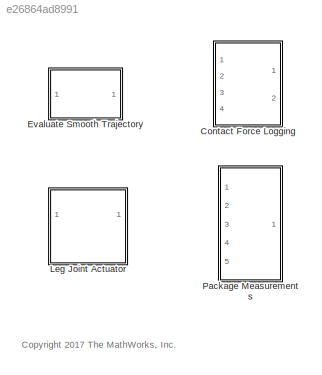
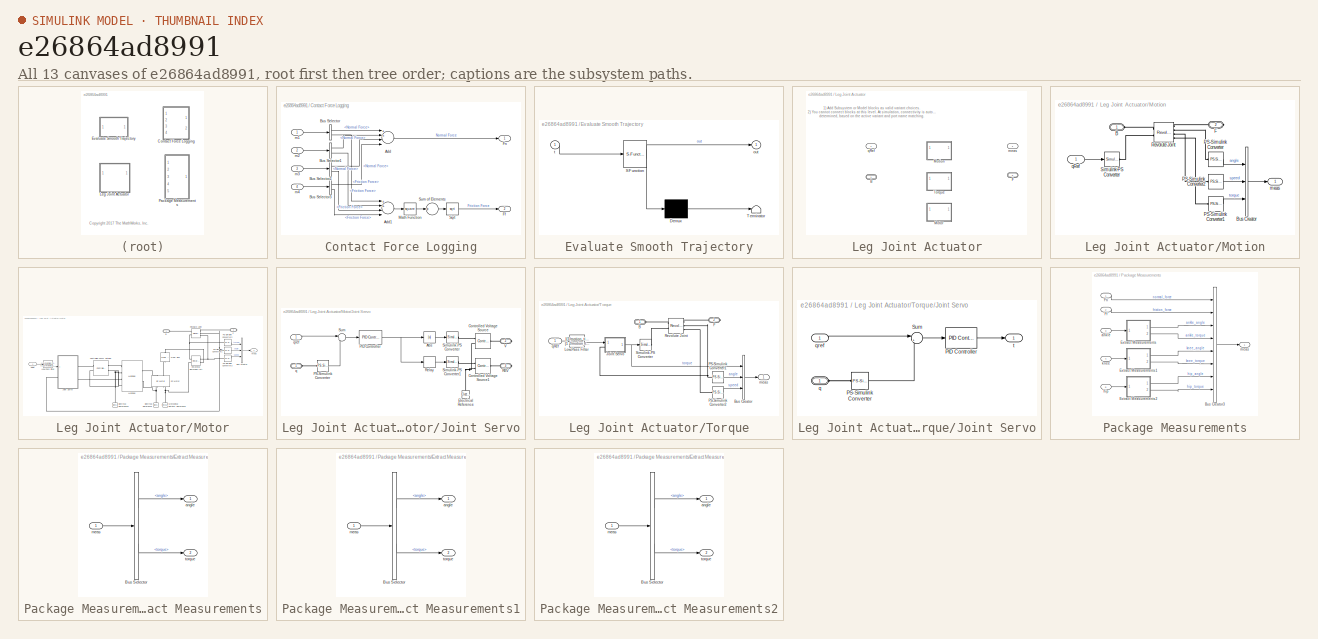
[diagram: thumbnail index - all 13 canvases of the model, root first then tree order]
MODEL slx_e26864ad8991
KIND library
CONFIG AbsTol = auto
CONFIG EnableMultiTasking = off
CONFIG FixedStep = auto
CONFIG MaxStep = auto
CONFIG MinStep = auto
CONFIG RelTol = 1e-3
CONFIG SampleTimeConstraint = Unconstrained
CONFIG Solver = VariableStepAuto
CONFIG SolverName = VariableStepAuto
CONFIG StartTime = 0.0
CONFIG StopTime = 10.0
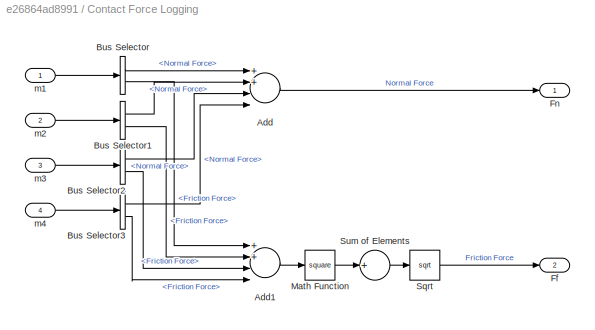
BLOCK [SubSystem] Contact Force Logging
  Ports = [4, 2]
  RequestExecContextInheritance = off
  Variant = off
BLOCK [Sum] Contact Force Logging/Add
  InputSameDT = off
  Inputs = 4
  OutDataTypeStr = Inherit: Inherit via internal rule
  Ports = [4, 1]
  SaturateOnIntegerOverflow = off
BLOCK [Sum] Contact Force Logging/Add1
  InputSameDT = off
  Inputs = 4
  OutDataTypeStr = Inherit: Inherit via internal rule
  Ports = [4, 1]
  SaturateOnIntegerOverflow = off
BLOCK [BusSelector] Contact Force Logging/Bus Selector
  OutputAsBus = off
  OutputSignals = Normal Force,Friction Force
  Ports = [1, 2]
BLOCK [BusSelector] Contact Force Logging/Bus Selector1
  OutputAsBus = off
  OutputSignals = Normal Force,Friction Force
  Ports = [1, 2]
BLOCK [BusSelector] Contact Force Logging/Bus Selector2
  OutputAsBus = off
  OutputSignals = Normal Force,Friction Force
  Ports = [1, 2]
BLOCK [BusSelector] Contact Force Logging/Bus Selector3
  OutputAsBus = off
  OutputSignals = Normal Force,Friction Force
  Ports = [1, 2]
BLOCK [Outport] Contact Force Logging/Ff
  IconDisplay = Port number
  Port = 2
BLOCK [Outport] Contact Force Logging/Fn
  IconDisplay = Port number
BLOCK [Math] Contact Force Logging/Math Function
  Operator = square
  Ports = [1, 1]
BLOCK [Sqrt] Contact Force Logging/Sqrt
BLOCK [Sum] Contact Force Logging/Sum of Elements
  InputSameDT = off
  Inputs = +
  OutDataTypeStr = Inherit: Inherit via internal rule
  Ports = [1, 1]
  SaturateOnIntegerOverflow = off
BLOCK [Inport] Contact Force Logging/m1
  IconDisplay = Port number
BLOCK [Inport] Contact Force Logging/m2
  IconDisplay = Port number
  Port = 2
BLOCK [Inport] Contact Force Logging/m3
  IconDisplay = Port number
  Port = 3
BLOCK [Inport] Contact Force Logging/m4
  IconDisplay = Port number
  Port = 4
BLOCK [SubSystem] Evaluate Smooth Trajectory
  ErrorFcn = Stateflow.Translate.translate
  PermitHierarchicalResolution = ExplicitOnly
  Ports = [1, 1]
  RequestExecContextInheritance = off
  SFBlockType = MATLAB Function
  TreatAsAtomicUnit = on
  Variant = off
BLOCK [Demux] Evaluate Smooth Trajectory/ Demux 
  Outputs = 1
  Ports = [1, 1]
BLOCK [S-Function] Evaluate Smooth Trajectory/ SFunction 
  EnableBusSupport = on
  FunctionName = sf_sfun
  Parameters = curveData
  PortCounts = [1 2]
  Ports = [1, 2]
  SFcnIsStateOwnerBlock = off
  SFunctionDeploymentMode = off
  Tag = Stateflow S-Function walkingRobotUtils 4
BLOCK [Terminator] Evaluate Smooth Trajectory/ Terminator 
BLOCK [Outport] Evaluate Smooth Trajectory/out
  IconDisplay = Port number
BLOCK [Inport] Evaluate Smooth Trajectory/t
  IconDisplay = Port number
BLOCK [SubSystem] Leg Joint Actuator
  Ports = [1, 1, 0, 0, 0, 1, 1]
  RequestExecContextInheritance = off
  Variant = on
BLOCK [PMIOPort] Leg Joint Actuator/B
  Port = 1
  Side = Left
BLOCK [PMIOPort] Leg Joint Actuator/F
  Port = 2
  Side = Right
BLOCK [SubSystem] Leg Joint Actuator/Motion
  Ports = [1, 1, 0, 0, 0, 1, 1]
  RequestExecContextInheritance = off
  Variant = off
  VariantControl = actuatorType == 1
BLOCK [PMIOPort] Leg Joint Actuator/Motion/B
  Port = 1
  Side = Left
BLOCK [BusCreator] Leg Joint Actuator/Motion/Bus Creator
  DisplayOption = bar
  InheritFromInputs = on
  Inputs = 3
  Ports = [3, 1]
BLOCK [PMIOPort] Leg Joint Actuator/Motion/F
  Port = 2
  Side = Right
BLOCK [Reference] Leg Joint Actuator/Motion/PS-Simulink Converter  REF=nesl_utility/PS-Simulink
Converter
  Ports = [0, 1, 0, 0, 0, 1]
  SourceBlock = nesl_utility/PS-Simulink\nConverter
  SourceProductBaseCode = SS
  SourceProductName = Simscape
  SourceType = PS-Simulink\nConverter
BLOCK [Reference] Leg Joint Actuator/Motion/PS-Simulink Converter1  REF=nesl_utility/PS-Simulink
Converter
  Ports = [0, 1, 0, 0, 0, 1]
  SourceBlock = nesl_utility/PS-Simulink\nConverter
  SourceProductBaseCode = SS
  SourceProductName = Simscape
  SourceType = PS-Simulink\nConverter
BLOCK [Reference] Leg Joint Actuator/Motion/PS-Simulink Converter2  REF=nesl_utility/PS-Simulink
Converter
  Ports = [0, 1, 0, 0, 0, 1]
  SourceBlock = nesl_utility/PS-Simulink\nConverter
  SourceProductBaseCode = SS
  SourceProductName = Simscape
  SourceType = PS-Simulink\nConverter
BLOCK [Reference] Leg Joint Actuator/Motion/Revolute Joint  REF=sm_lib/Joints/Revolute Joint
  Ports = [0, 0, 0, 0, 0, 2, 4]
  SourceBlock = sm_lib/Joints/Revolute Joint
  SourceProductBaseCode = MS
  SourceProductName = Simscape Multibody
  SourceType = Revolute Joint
BLOCK [Reference] Leg Joint Actuator/Motion/Simulink-PS Converter  REF=nesl_utility/Simulink-PS
Converter
  Ports = [1, 0, 0, 0, 0, 0, 1]
  SourceBlock = nesl_utility/Simulink-PS\nConverter
  SourceProductBaseCode = SS
  SourceProductName = Simscape
  SourceType = Simulink-PS\nConverter
BLOCK [Outport] Leg Joint Actuator/Motion/meas
  IconDisplay = Port number
BLOCK [Inport] Leg Joint Actuator/Motion/qRef
  IconDisplay = Port number
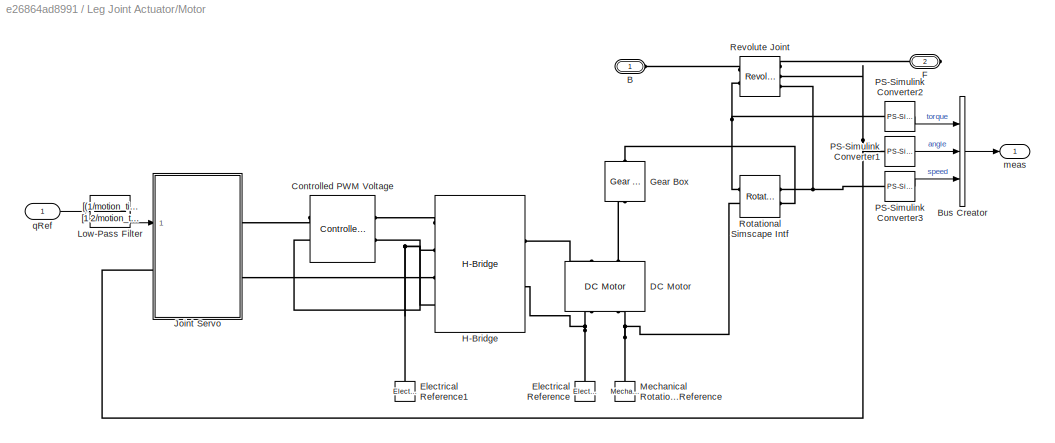
BLOCK [SubSystem] Leg Joint Actuator/Motor
  Ports = [1, 1, 0, 0, 0, 1, 1]
  RequestExecContextInheritance = off
  Variant = off
  VariantControl = actuatorType == 3
BLOCK [PMIOPort] Leg Joint Actuator/Motor/B
  Port = 1
  Side = Left
BLOCK [BusCreator] Leg Joint Actuator/Motor/Bus Creator
  DisplayOption = bar
  InheritFromInputs = on
  Inputs = 3
  Ports = [3, 1]
BLOCK [Reference] Leg Joint Actuator/Motor/Controlled PWM Voltage  REF=elec_lib/Actuators & Drivers/Drivers/Controlled PWM
Voltage
  Ports = [0, 0, 0, 0, 0, 2, 2]
  SourceBlock = elec_lib/Actuators & Drivers/Drivers/Controlled PWM\nVoltage
  SourceProductBaseCode = SN
  SourceProductName = Simscape Electronics
  SourceType = Controlled PWM\nVoltage
BLOCK [Reference] Leg Joint Actuator/Motor/DC Motor  REF=elec_lib/Actuators & Drivers/Rotational Actuators/DC Motor
  Ports = [0, 0, 0, 0, 0, 2, 2]
  SourceBlock = elec_lib/Actuators & Drivers/Rotational Actuators/DC Motor
  SourceProductBaseCode = SN
  SourceProductName = Simscape Electronics
  SourceType = DC Motor
BLOCK [Reference] Leg Joint Actuator/Motor/Electrical Reference  REF=fl_lib/Electrical/Electrical Elements/Electrical Reference
  Ports = [0, 0, 0, 0, 0, 1]
  SourceBlock = fl_lib/Electrical/Electrical Elements/Electrical Reference
  SourceProductBaseCode = SS
  SourceProductName = Simscape
  SourceType = Electrical Reference
BLOCK [Reference] Leg Joint Actuator/Motor/Electrical Reference1  REF=fl_lib/Electrical/Electrical Elements/Electrical Reference
  Ports = [0, 0, 0, 0, 0, 1]
  SourceBlock = fl_lib/Electrical/Electrical Elements/Electrical Reference
  SourceProductBaseCode = SS
  SourceProductName = Simscape
  SourceType = Electrical Reference
BLOCK [PMIOPort] Leg Joint Actuator/Motor/F
  Port = 2
  Side = Right
BLOCK [Reference] Leg Joint Actuator/Motor/Gear Box  REF=fl_lib/Mechanical/Mechanisms/Gear Box
  Ports = [0, 0, 0, 0, 0, 1, 1]
  SourceBlock = fl_lib/Mechanical/Mechanisms/Gear Box
  SourceProductBaseCode = SS
  SourceProductName = Simscape
  SourceType = Gear Box
BLOCK [Reference] Leg Joint Actuator/Motor/H-Bridge  REF=elec_lib/Actuators & Drivers/Drivers/H-Bridge
  Ports = [0, 0, 0, 0, 0, 4, 2]
  SourceBlock = elec_lib/Actuators & Drivers/Drivers/H-Bridge
  SourceProductBaseCode = SN
  SourceProductName = Simscape Electronics
  SourceType = H-Bridge
BLOCK [SubSystem] Leg Joint Actuator/Motor/Joint Servo
  Ports = [1, 0, 0, 0, 0, 1, 2]
  RequestExecContextInheritance = off
  Variant = off
BLOCK [Abs] Leg Joint Actuator/Motor/Joint Servo/Abs
  SaturateOnIntegerOverflow = off
BLOCK [Reference] Leg Joint Actuator/Motor/Joint Servo/Controlled Voltage Source  REF=fl_lib/Electrical/Electrical Sources/Controlled Voltage
Source
  Ports = [0, 0, 0, 0, 0, 1, 2]
  SourceBlock = fl_lib/Electrical/Electrical Sources/Controlled Voltage\nSource
  SourceProductBaseCode = SS
  SourceProductName = Simscape
  SourceType = Controlled Voltage\nSource
BLOCK [Reference] Leg Joint Actuator/Motor/Joint Servo/Controlled Voltage Source1  REF=fl_lib/Electrical/Electrical Sources/Controlled Voltage
Source
  Ports = [0, 0, 0, 0, 0, 1, 2]
  SourceBlock = fl_lib/Electrical/Electrical Sources/Controlled Voltage\nSource
  SourceProductBaseCode = SS
  SourceProductName = Simscape
  SourceType = Controlled Voltage\nSource
BLOCK [Reference] Leg Joint Actuator/Motor/Joint Servo/Electrical Reference  REF=fl_lib/Electrical/Electrical Elements/Electrical Reference
  Ports = [0, 0, 0, 0, 0, 1]
  SourceBlock = fl_lib/Electrical/Electrical Elements/Electrical Reference
  SourceProductBaseCode = SS
  SourceProductName = Simscape
  SourceType = Electrical Reference
BLOCK [Reference] Leg Joint Actuator/Motor/Joint Servo/PID Controller  REF=simulink/Continuous/PID Controller
  Ports = [1, 1]
  SourceBlock = simulink/Continuous/PID Controller
  SourceProductBaseCode = SL
  SourceProductName = Simulink
  SourceType = PID 1dof
BLOCK [Reference] Leg Joint Actuator/Motor/Joint Servo/PS-Simulink Converter  REF=nesl_utility/PS-Simulink
Converter
  Ports = [0, 1, 0, 0, 0, 1]
  SourceBlock = nesl_utility/PS-Simulink\nConverter
  SourceProductBaseCode = SS
  SourceProductName = Simscape
  SourceType = PS-Simulink\nConverter
BLOCK [PMIOPort] Leg Joint Actuator/Motor/Joint Servo/REV
  Port = 3
  Side = Right
BLOCK [Relay] Leg Joint Actuator/Motor/Joint Servo/Relay
  InputProcessing = Elements as channels (sample based)
  OffOutputValue = 5
  OffSwitchValue = -1e-3
  OnOutputValue = 0
  OnSwitchValue = 1e-3
BLOCK [Reference] Leg Joint Actuator/Motor/Joint Servo/Simulink-PS Converter  REF=nesl_utility/Simulink-PS
Converter
  Ports = [1, 0, 0, 0, 0, 0, 1]
  SourceBlock = nesl_utility/Simulink-PS\nConverter
  SourceProductBaseCode = SS
  SourceProductName = Simscape
  SourceType = Simulink-PS\nConverter
BLOCK [Reference] Leg Joint Actuator/Motor/Joint Servo/Simulink-PS Converter1  REF=nesl_utility/Simulink-PS
Converter
  Ports = [1, 0, 0, 0, 0, 0, 1]
  SourceBlock = nesl_utility/Simulink-PS\nConverter
  SourceProductBaseCode = SS
  SourceProductName = Simscape
  SourceType = Simulink-PS\nConverter
BLOCK [Sum] Leg Joint Actuator/Motor/Joint Servo/Sum
  IconShape = round
  InputSameDT = off
  Inputs = |+-
  OutDataTypeStr = Inherit: Inherit via internal rule
  Ports = [2, 1]
  SaturateOnIntegerOverflow = off
BLOCK [PMIOPort] Leg Joint Actuator/Motor/Joint Servo/V
  Port = 2
  Side = Right
BLOCK [PMIOPort] Leg Joint Actuator/Motor/Joint Servo/q
  Port = 1
  Side = Left
BLOCK [Inport] Leg Joint Actuator/Motor/Joint Servo/qref
  IconDisplay = Port number
BLOCK [TransferFcn] Leg Joint Actuator/Motor/Low-Pass Filter
  Denominator = [1 2/motion_time_constant (1/motion_time_constant)^2]
  Numerator = [(1/motion_time_constant)^2]
BLOCK [Reference] Leg Joint Actuator/Motor/Mechanical Rotational Reference  REF=fl_lib/Mechanical/Rotational Elements/Mechanical
Rotational Reference
  Ports = [0, 0, 0, 0, 0, 1]
  SourceBlock = fl_lib/Mechanical/Rotational Elements/Mechanical\nRotational Reference
  SourceProductBaseCode = SS
  SourceProductName = Simscape
  SourceType = Mechanical\nRotational Reference
BLOCK [Reference] Leg Joint Actuator/Motor/PS-Simulink Converter1  REF=nesl_utility/PS-Simulink
Converter
  Ports = [0, 1, 0, 0, 0, 1]
  SourceBlock = nesl_utility/PS-Simulink\nConverter
  SourceProductBaseCode = SS
  SourceProductName = Simscape
  SourceType = PS-Simulink\nConverter
BLOCK [Reference] Leg Joint Actuator/Motor/PS-Simulink Converter2  REF=nesl_utility/PS-Simulink
Converter
  Ports = [0, 1, 0, 0, 0, 1]
  SourceBlock = nesl_utility/PS-Simulink\nConverter
  SourceProductBaseCode = SS
  SourceProductName = Simscape
  SourceType = PS-Simulink\nConverter
BLOCK [Reference] Leg Joint Actuator/Motor/PS-Simulink Converter3  REF=nesl_utility/PS-Simulink
Converter
  Ports = [0, 1, 0, 0, 0, 1]
  SourceBlock = nesl_utility/PS-Simulink\nConverter
  SourceProductBaseCode = SS
  SourceProductName = Simscape
  SourceType = PS-Simulink\nConverter
BLOCK [Reference] Leg Joint Actuator/Motor/Revolute Joint  REF=sm_lib/Joints/Revolute Joint
  Ports = [0, 0, 0, 0, 0, 2, 3]
  SourceBlock = sm_lib/Joints/Revolute Joint
  SourceProductBaseCode = MS
  SourceProductName = Simscape Multibody
  SourceType = Revolute Joint
BLOCK [Reference] Leg Joint Actuator/Motor/Rotational Simscape Intf  REF=Multibody_Multiphysics_Lib/Interfaces/Rotational
Simscape Intf
  Ports = [0, 0, 0, 0, 0, 2, 2]
  SourceBlock = Multibody_Multiphysics_Lib/Interfaces/Rotational\nSimscape Intf
  SourceProductName = Simscape Multibody Multiphysics Library
  SourceType = SubSystem
BLOCK [Outport] Leg Joint Actuator/Motor/meas
  IconDisplay = Port number
BLOCK [Inport] Leg Joint Actuator/Motor/qRef
  IconDisplay = Port number
BLOCK [SubSystem] Leg Joint Actuator/Torque
  Ports = [1, 1, 0, 0, 0, 1, 1]
  RequestExecContextInheritance = off
  Variant = off
  VariantControl = actuatorType == 2
BLOCK [PMIOPort] Leg Joint Actuator/Torque/B
  Port = 1
  Side = Left
BLOCK [BusCreator] Leg Joint Actuator/Torque/Bus Creator
  DisplayOption = bar
  InheritFromInputs = on
  Inputs = 3
  Ports = [3, 1]
BLOCK [PMIOPort] Leg Joint Actuator/Torque/F
  Port = 2
  Side = Right
BLOCK [SubSystem] Leg Joint Actuator/Torque/Joint Servo
  Ports = [1, 1, 0, 0, 0, 1]
  RequestExecContextInheritance = off
  Variant = off
BLOCK [Reference] Leg Joint Actuator/Torque/Joint Servo/PID Controller  REF=simulink/Continuous/PID Controller
  Ports = [1, 1]
  SourceBlock = simulink/Continuous/PID Controller
  SourceProductBaseCode = SL
  SourceProductName = Simulink
  SourceType = PID 1dof
BLOCK [Reference] Leg Joint Actuator/Torque/Joint Servo/PS-Simulink Converter  REF=nesl_utility/PS-Simulink
Converter
  Ports = [0, 1, 0, 0, 0, 1]
  SourceBlock = nesl_utility/PS-Simulink\nConverter
  SourceProductBaseCode = SS
  SourceProductName = Simscape
  SourceType = PS-Simulink\nConverter
BLOCK [Sum] Leg Joint Actuator/Torque/Joint Servo/Sum
  IconShape = round
  InputSameDT = off
  Inputs = |+-
  OutDataTypeStr = Inherit: Inherit via internal rule
  Ports = [2, 1]
  SaturateOnIntegerOverflow = off
BLOCK [PMIOPort] Leg Joint Actuator/Torque/Joint Servo/q
  Port = 1
  Side = Left
BLOCK [Inport] Leg Joint Actuator/Torque/Joint Servo/qref
  IconDisplay = Port number
BLOCK [Outport] Leg Joint Actuator/Torque/Joint Servo/t
  IconDisplay = Port number
BLOCK [TransferFcn] Leg Joint Actuator/Torque/Low-Pass Filter
  Denominator = [1 2/motion_time_constant (1/motion_time_constant)^2]
  Numerator = [(1/motion_time_constant)^2]
BLOCK [Reference] Leg Joint Actuator/Torque/PS-Simulink Converter1  REF=nesl_utility/PS-Simulink
Converter
  Ports = [0, 1, 0, 0, 0, 1]
  SourceBlock = nesl_utility/PS-Simulink\nConverter
  SourceProductBaseCode = SS
  SourceProductName = Simscape
  SourceType = PS-Simulink\nConverter
BLOCK [Reference] Leg Joint Actuator/Torque/PS-Simulink Converter2  REF=nesl_utility/PS-Simulink
Converter
  Ports = [0, 1, 0, 0, 0, 1]
  SourceBlock = nesl_utility/PS-Simulink\nConverter
  SourceProductBaseCode = SS
  SourceProductName = Simscape
  SourceType = PS-Simulink\nConverter
BLOCK [Reference] Leg Joint Actuator/Torque/Revolute Joint  REF=sm_lib/Joints/Revolute Joint
  Ports = [0, 0, 0, 0, 0, 2, 3]
  SourceBlock = sm_lib/Joints/Revolute Joint
  SourceProductBaseCode = MS
  SourceProductName = Simscape Multibody
  SourceType = Revolute Joint
BLOCK [Reference] Leg Joint Actuator/Torque/Simulink-PS Converter  REF=nesl_utility/Simulink-PS
Converter
  Ports = [1, 0, 0, 0, 0, 0, 1]
  SourceBlock = nesl_utility/Simulink-PS\nConverter
  SourceProductBaseCode = SS
  SourceProductName = Simscape
  SourceType = Simulink-PS\nConverter
BLOCK [Outport] Leg Joint Actuator/Torque/meas
  IconDisplay = Port number
BLOCK [Inport] Leg Joint Actuator/Torque/qRef
  IconDisplay = Port number
BLOCK [Outport] Leg Joint Actuator/meas
  IconDisplay = Port number
BLOCK [Inport] Leg Joint Actuator/qRef
  IconDisplay = Port number
BLOCK [SubSystem] Package Measurements
  Ports = [5, 1]
  RequestExecContextInheritance = off
  Variant = off
BLOCK [BusCreator] Package Measurements/Bus Creator3
  DisplayOption = bar
  InheritFromInputs = on
  Inputs = 8
  Ports = [8, 1]
BLOCK [SubSystem] Package Measurements/Extract Measurements
  Ports = [1, 2]
  RequestExecContextInheritance = off
  Variant = off
BLOCK [BusSelector] Package Measurements/Extract Measurements/Bus Selector
  OutputAsBus = off
  OutputSignals = angle,torque
  Ports = [1, 2]
BLOCK [Outport] Package Measurements/Extract Measurements/angle
  IconDisplay = Port number
BLOCK [Inport] Package Measurements/Extract Measurements/meas
  IconDisplay = Port number
BLOCK [Outport] Package Measurements/Extract Measurements/torque
  IconDisplay = Port number
  Port = 2
BLOCK [SubSystem] Package Measurements/Extract Measurements1
  Ports = [1, 2]
  RequestExecContextInheritance = off
  Variant = off
BLOCK [BusSelector] Package Measurements/Extract Measurements1/Bus Selector
  OutputAsBus = off
  OutputSignals = angle,torque
  Ports = [1, 2]
BLOCK [Outport] Package Measurements/Extract Measurements1/angle
  IconDisplay = Port number
BLOCK [Inport] Package Measurements/Extract Measurements1/meas
  IconDisplay = Port number
BLOCK [Outport] Package Measurements/Extract Measurements1/torque
  IconDisplay = Port number
  Port = 2
BLOCK [SubSystem] Package Measurements/Extract Measurements2
  Ports = [1, 2]
  RequestExecContextInheritance = off
  Variant = off
BLOCK [BusSelector] Package Measurements/Extract Measurements2/Bus Selector
  OutputAsBus = off
  OutputSignals = angle,torque
  Ports = [1, 2]
BLOCK [Outport] Package Measurements/Extract Measurements2/angle
  IconDisplay = Port number
BLOCK [Inport] Package Measurements/Extract Measurements2/meas
  IconDisplay = Port number
BLOCK [Outport] Package Measurements/Extract Measurements2/torque
  IconDisplay = Port number
  Port = 2
BLOCK [Inport] Package Measurements/Ff
  IconDisplay = Port number
  Port = 2
BLOCK [Inport] Package Measurements/Fn
  IconDisplay = Port number
BLOCK [Inport] Package Measurements/ankle
  IconDisplay = Port number
  Port = 3
BLOCK [Inport] Package Measurements/hip
  IconDisplay = Port number
  Port = 5
BLOCK [Inport] Package Measurements/knee
  IconDisplay = Port number
  Port = 4
BLOCK [Outport] Package Measurements/meas
  IconDisplay = Port number
ANNOTATION (root): <copyright redacted>
ANNOTATION Leg Joint Actuator: 1) Add Subsystem or Model blocks as valid variant choices. 2) You cannot connect blocks at this level. At simulation, connectivity is automatically determined, based on the active variant and port name matching.
LINE Contact Force Logging/Add1:1 -> Contact Force Logging/Math Function:1
LINE Contact Force Logging/Add:1 -> Contact Force Logging/Fn:1
LINE Contact Force Logging/Bus Selector1:1 -> Contact Force Logging/Add:2
LINE Contact Force Logging/Bus Selector1:2 -> Contact Force Logging/Add1:2
LINE Contact Force Logging/Bus Selector2:1 -> Contact Force Logging/Add:3
LINE Contact Force Logging/Bus Selector2:2 -> Contact Force Logging/Add1:3
LINE Contact Force Logging/Bus Selector3:1 -> Contact Force Logging/Add:4
LINE Contact Force Logging/Bus Selector3:2 -> Contact Force Logging/Add1:4
LINE Contact Force Logging/Bus Selector:1 -> Contact Force Logging/Add:1
LINE Contact Force Logging/Bus Selector:2 -> Contact Force Logging/Add1:1
LINE Contact Force Logging/Math Function:1 -> Contact Force Logging/Sum of Elements:1
LINE Contact Force Logging/Sqrt:1 -> Contact Force Logging/Ff:1
LINE Contact Force Logging/Sum of Elements:1 -> Contact Force Logging/Sqrt:1
LINE Contact Force Logging/m1:1 -> Contact Force Logging/Bus Selector:1
LINE Contact Force Logging/m2:1 -> Contact Force Logging/Bus Selector1:1
LINE Contact Force Logging/m3:1 -> Contact Force Logging/Bus Selector2:1
LINE Contact Force Logging/m4:1 -> Contact Force Logging/Bus Selector3:1
LINE Leg Joint Actuator/Motion/Bus Creator:1 -> Leg Joint Actuator/Motion/meas:1
LINE Leg Joint Actuator/Motion/PS-Simulink Converter1:1 -> Leg Joint Actuator/Motion/Bus Creator:3
LINE Leg Joint Actuator/Motion/PS-Simulink Converter2:1 -> Leg Joint Actuator/Motion/Bus Creator:2
LINE Leg Joint Actuator/Motion/PS-Simulink Converter:1 -> Leg Joint Actuator/Motion/Bus Creator:1
LINE Leg Joint Actuator/Motion/qRef:1 -> Leg Joint Actuator/Motion/Simulink-PS Converter:1
LINE Leg Joint Actuator/Motor/Bus Creator:1 -> Leg Joint Actuator/Motor/meas:1
LINE Leg Joint Actuator/Motor/Joint Servo/Abs:1 -> Leg Joint Actuator/Motor/Joint Servo/Simulink-PS Converter:1
NET Leg Joint Actuator/Motor/Joint Servo/PID Controller:1 -> Leg Joint Actuator/Motor/Joint Servo/Abs:1, Leg Joint Actuator/Motor/Joint Servo/Relay:1
LINE Leg Joint Actuator/Motor/Joint Servo/PS-Simulink Converter:1 -> Leg Joint Actuator/Motor/Joint Servo/Sum:2
LINE Leg Joint Actuator/Motor/Joint Servo/Relay:1 -> Leg Joint Actuator/Motor/Joint Servo/Simulink-PS Converter1:1
LINE Leg Joint Actuator/Motor/Joint Servo/Sum:1 -> Leg Joint Actuator/Motor/Joint Servo/PID Controller:1
LINE Leg Joint Actuator/Motor/Joint Servo/qref:1 -> Leg Joint Actuator/Motor/Joint Servo/Sum:1
LINE Leg Joint Actuator/Motor/Low-Pass Filter:1 -> Leg Joint Actuator/Motor/Joint Servo:1
LINE Leg Joint Actuator/Motor/PS-Simulink Converter1:1 -> Leg Joint Actuator/Motor/Bus Creator:2
LINE Leg Joint Actuator/Motor/PS-Simulink Converter2:1 -> Leg Joint Actuator/Motor/Bus Creator:1
LINE Leg Joint Actuator/Motor/PS-Simulink Converter3:1 -> Leg Joint Actuator/Motor/Bus Creator:3
LINE Leg Joint Actuator/Motor/qRef:1 -> Leg Joint Actuator/Motor/Low-Pass Filter:1
LINE Leg Joint Actuator/Torque/Bus Creator:1 -> Leg Joint Actuator/Torque/meas:1
LINE Leg Joint Actuator/Torque/Joint Servo/PID Controller:1 -> Leg Joint Actuator/Torque/Joint Servo/t:1
LINE Leg Joint Actuator/Torque/Joint Servo/PS-Simulink Converter:1 -> Leg Joint Actuator/Torque/Joint Servo/Sum:2
LINE Leg Joint Actuator/Torque/Joint Servo/Sum:1 -> Leg Joint Actuator/Torque/Joint Servo/PID Controller:1
LINE Leg Joint Actuator/Torque/Joint Servo/qref:1 -> Leg Joint Actuator/Torque/Joint Servo/Sum:1
NET Leg Joint Actuator/Torque/Joint Servo:1 -> Leg Joint Actuator/Torque/Bus Creator:1, Leg Joint Actuator/Torque/Simulink-PS Converter:1
LINE Leg Joint Actuator/Torque/Low-Pass Filter:1 -> Leg Joint Actuator/Torque/Joint Servo:1
LINE Leg Joint Actuator/Torque/PS-Simulink Converter1:1 -> Leg Joint Actuator/Torque/Bus Creator:2
LINE Leg Joint Actuator/Torque/PS-Simulink Converter2:1 -> Leg Joint Actuator/Torque/Bus Creator:3
LINE Leg Joint Actuator/Torque/qRef:1 -> Leg Joint Actuator/Torque/Low-Pass Filter:1
LINE Package Measurements/Bus Creator3:1 -> Package Measurements/meas:1
LINE Package Measurements/Extract Measurements/Bus Selector:1 -> Package Measurements/Extract Measurements/angle:1
LINE Package Measurements/Extract Measurements/Bus Selector:2 -> Package Measurements/Extract Measurements/torque:1
LINE Package Measurements/Extract Measurements/meas:1 -> Package Measurements/Extract Measurements/Bus Selector:1
LINE Package Measurements/Extract Measurements1/Bus Selector:1 -> Package Measurements/Extract Measurements1/angle:1
LINE Package Measurements/Extract Measurements1/Bus Selector:2 -> Package Measurements/Extract Measurements1/torque:1
LINE Package Measurements/Extract Measurements1/meas:1 -> Package Measurements/Extract Measurements1/Bus Selector:1
LINE Package Measurements/Extract Measurements1:1 -> Package Measurements/Bus Creator3:5
LINE Package Measurements/Extract Measurements1:2 -> Package Measurements/Bus Creator3:6
LINE Package Measurements/Extract Measurements2/Bus Selector:1 -> Package Measurements/Extract Measurements2/angle:1
LINE Package Measurements/Extract Measurements2/Bus Selector:2 -> Package Measurements/Extract Measurements2/torque:1
LINE Package Measurements/Extract Measurements2/meas:1 -> Package Measurements/Extract Measurements2/Bus Selector:1
LINE Package Measurements/Extract Measurements2:1 -> Package Measurements/Bus Creator3:7
LINE Package Measurements/Extract Measurements2:2 -> Package Measurements/Bus Creator3:8
LINE Package Measurements/Extract Measurements:1 -> Package Measurements/Bus Creator3:3
LINE Package Measurements/Extract Measurements:2 -> Package Measurements/Bus Creator3:4
LINE Package Measurements/Ff:1 -> Package Measurements/Bus Creator3:2
LINE Package Measurements/Fn:1 -> Package Measurements/Bus Creator3:1
LINE Package Measurements/ankle:1 -> Package Measurements/Extract Measurements:1
LINE Package Measurements/hip:1 -> Package Measurements/Extract Measurements2:1
LINE Package Measurements/knee:1 -> Package Measurements/Extract Measurements1:1
PLINE Leg Joint Actuator/Motion/B:RConn1 -- Leg Joint Actuator/Motion/Revolute Joint:LConn1
PLINE Leg Joint Actuator/Motion/F:RConn1 -- Leg Joint Actuator/Motion/Revolute Joint:RConn1
PLINE Leg Joint Actuator/Motion/PS-Simulink Converter1:LConn1 -- Leg Joint Actuator/Motion/Revolute Joint:RConn4
PLINE Leg Joint Actuator/Motion/PS-Simulink Converter2:LConn1 -- Leg Joint Actuator/Motion/Revolute Joint:RConn3
PLINE Leg Joint Actuator/Motion/PS-Simulink Converter:LConn1 -- Leg Joint Actuator/Motion/Revolute Joint:RConn2
PLINE Leg Joint Actuator/Motion/Revolute Joint:LConn2 -- Leg Joint Actuator/Motion/Simulink-PS Converter:RConn1
PLINE Leg Joint Actuator/Motor/B:RConn1 -- Leg Joint Actuator/Motor/Revolute Joint:LConn1
PLINE Leg Joint Actuator/Motor/Controlled PWM Voltage:LConn1 -- Leg Joint Actuator/Motor/Joint Servo:RConn1
PNET net1: Leg Joint Actuator/Motor/Controlled PWM Voltage:LConn2 -- Leg Joint Actuator/Motor/Controlled PWM Voltage:RConn2 -- Leg Joint Actuator/Motor/Electrical Reference1:LConn1 -- Leg Joint Actuator/Motor/H-Bridge:LConn2 -- Leg Joint Actuator/Motor/H-Bridge:LConn4
PLINE Leg Joint Actuator/Motor/Controlled PWM Voltage:RConn1 -- Leg Joint Actuator/Motor/H-Bridge:LConn1
PLINE Leg Joint Actuator/Motor/DC Motor:LConn1 -- Leg Joint Actuator/Motor/H-Bridge:RConn1
PLINE Leg Joint Actuator/Motor/DC Motor:LConn2 -- Leg Joint Actuator/Motor/Gear Box:LConn1
PNET net2: Leg Joint Actuator/Motor/DC Motor:RConn1 -- Leg Joint Actuator/Motor/Electrical Reference:LConn1 -- Leg Joint Actuator/Motor/H-Bridge:RConn2
PNET net3: Leg Joint Actuator/Motor/DC Motor:RConn2 -- Leg Joint Actuator/Motor/Mechanical Rotational Reference:LConn1 -- Leg Joint Actuator/Motor/Rotational Simscape Intf:LConn2
PLINE Leg Joint Actuator/Motor/F:RConn1 -- Leg Joint Actuator/Motor/Revolute Joint:RConn1
PLINE Leg Joint Actuator/Motor/Gear Box:RConn1 -- Leg Joint Actuator/Motor/Rotational Simscape Intf:RConn2
PLINE Leg Joint Actuator/Motor/H-Bridge:LConn3 -- Leg Joint Actuator/Motor/Joint Servo:RConn2
PLINE Leg Joint Actuator/Motor/Joint Servo/Controlled Voltage Source1:LConn1 -- Leg Joint Actuator/Motor/Joint Servo/REV:RConn1
PLINE Leg Joint Actuator/Motor/Joint Servo/Controlled Voltage Source1:RConn1 -- Leg Joint Actuator/Motor/Joint Servo/Simulink-PS Converter1:RConn1
PNET net4: Leg Joint Actuator/Motor/Joint Servo/Controlled Voltage Source1:RConn2 -- Leg Joint Actuator/Motor/Joint Servo/Controlled Voltage Source:RConn2 -- Leg Joint Actuator/Motor/Joint Servo/Electrical Reference:LConn1
PLINE Leg Joint Actuator/Motor/Joint Servo/Controlled Voltage Source:LConn1 -- Leg Joint Actuator/Motor/Joint Servo/V:RConn1
PLINE Leg Joint Actuator/Motor/Joint Servo/Controlled Voltage Source:RConn1 -- Leg Joint Actuator/Motor/Joint Servo/Simulink-PS Converter:RConn1
PLINE Leg Joint Actuator/Motor/Joint Servo/PS-Simulink Converter:LConn1 -- Leg Joint Actuator/Motor/Joint Servo/q:RConn1
PNET net5: Leg Joint Actuator/Motor/Joint Servo:LConn1 -- Leg Joint Actuator/Motor/PS-Simulink Converter1:LConn1 -- Leg Joint Actuator/Motor/Revolute Joint:RConn2
PNET net6: Leg Joint Actuator/Motor/PS-Simulink Converter2:LConn1 -- Leg Joint Actuator/Motor/Revolute Joint:LConn2 -- Leg Joint Actuator/Motor/Rotational Simscape Intf:LConn1
PNET net7: Leg Joint Actuator/Motor/PS-Simulink Converter3:LConn1 -- Leg Joint Actuator/Motor/Revolute Joint:RConn3 -- Leg Joint Actuator/Motor/Rotational Simscape Intf:RConn1
PLINE Leg Joint Actuator/Torque/B:RConn1 -- Leg Joint Actuator/Torque/Revolute Joint:LConn1
PLINE Leg Joint Actuator/Torque/F:RConn1 -- Leg Joint Actuator/Torque/Revolute Joint:RConn1
PLINE Leg Joint Actuator/Torque/Joint Servo/PS-Simulink Converter:LConn1 -- Leg Joint Actuator/Torque/Joint Servo/q:RConn1
PNET net8: Leg Joint Actuator/Torque/Joint Servo:LConn1 -- Leg Joint Actuator/Torque/PS-Simulink Converter1:LConn1 -- Leg Joint Actuator/Torque/Revolute Joint:RConn2
PLINE Leg Joint Actuator/Torque/PS-Simulink Converter2:LConn1 -- Leg Joint Actuator/Torque/Revolute Joint:RConn3
PLINE Leg Joint Actuator/Torque/Revolute Joint:LConn2 -- Leg Joint Actuator/Torque/Simulink-PS Converter:RConn1
note: NET lines group one-source signal fan-out (src -> all destinations, sorted); 1:1 wires keep LINE; PNET lines group multi-terminal physical nets as a canonical sorted terminal list (undirected conserving connections); 2-terminal nets keep the pairwise PLINE form
CHART Evaluate Smooth 
Trajectory states=1 transitions=1
  STATE_LABEL 'eML_blk_kernel()'
  STATE_LABEL 'SCRIPT:\nfunction out = smoothTraj(t,curveData)\n\n    % Call evalSmoothTrajectory function\n    out = evalSmoothTrajectory(curveData,t);\n\nend\n'
